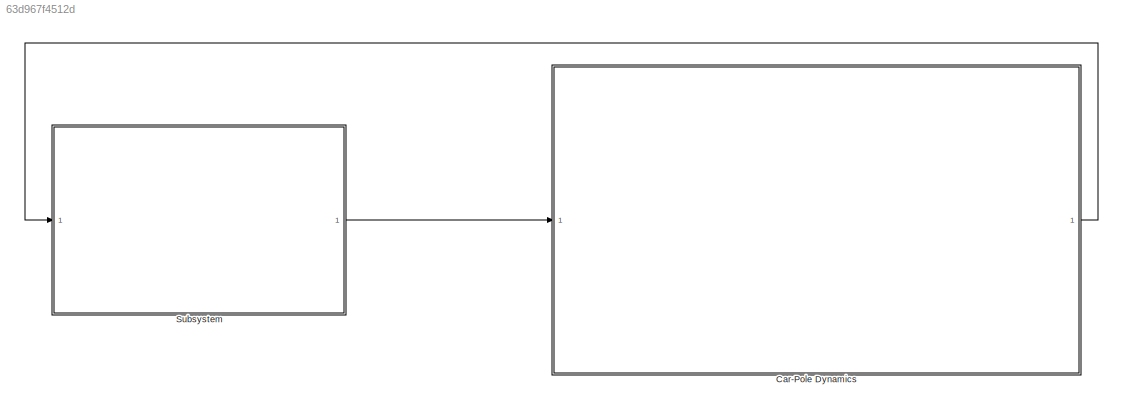
MODEL slx_63d967f4512d
KIND model
CONFIG AbsTol = auto
CONFIG EnableMultiTasking = off
CONFIG FixedStep = auto
CONFIG MaxStep = auto
CONFIG MinStep = auto
CONFIG RelTol = 1e-3
CONFIG SampleTimeConstraint = Unconstrained
CONFIG SolverName = daessc
CONFIG StartTime = 0.0
CONFIG StopTime = 10.0
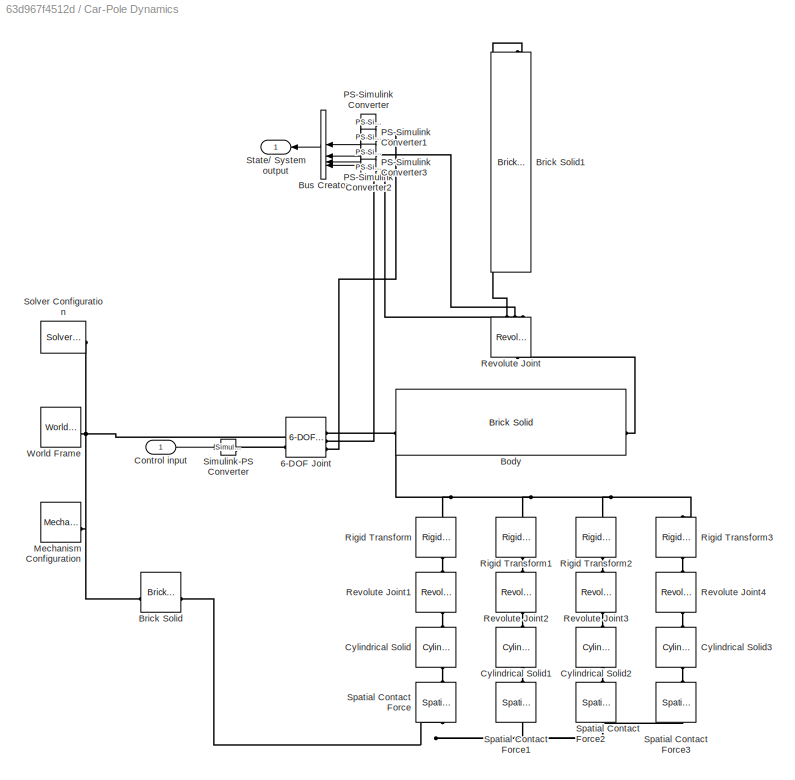
BLOCK [SubSystem] Car-Pole Dynamics
BLOCK [Reference] Car-Pole Dynamics/6-DOF Joint  REF=sm_lib/Joints/6-DOF Joint
  SourceBlock = sm_lib/Joints/6-DOF Joint
  SourceType = 6-DOF Joint
BLOCK [Reference] Car-Pole Dynamics/Body  REF=sm_lib/Body Elements/Brick Solid
  NameLocation = top
  SourceBlock = sm_lib/Body Elements/Brick Solid
  SourceType = Brick Solid
BLOCK [Reference] Car-Pole Dynamics/Brick Solid  REF=sm_lib/Body Elements/Brick Solid
  NameLocation = top
  SourceBlock = sm_lib/Body Elements/Brick Solid
  SourceType = Brick Solid
BLOCK [Reference] Car-Pole Dynamics/Brick Solid1  REF=sm_lib/Body Elements/Brick Solid
  NameLocation = left
  SourceBlock = sm_lib/Body Elements/Brick Solid
  SourceType = Brick Solid
BLOCK [BusCreator] Car-Pole Dynamics/Bus Creator
  DisplayOption = bar
  InheritFromInputs = on
  Inputs = 4
BLOCK [Inport] Car-Pole Dynamics/Control input
BLOCK [Reference] Car-Pole Dynamics/Cylindrical Solid  REF=sm_lib/Body Elements/Cylindrical Solid
  NameLocation = right
  SourceBlock = sm_lib/Body Elements/Cylindrical Solid
  SourceType = Cylindrical Solid
BLOCK [Reference] Car-Pole Dynamics/Cylindrical Solid1  REF=sm_lib/Body Elements/Cylindrical Solid
  NameLocation = right
  SourceBlock = sm_lib/Body Elements/Cylindrical Solid
  SourceType = Cylindrical Solid
BLOCK [Reference] Car-Pole Dynamics/Cylindrical Solid2  REF=sm_lib/Body Elements/Cylindrical Solid
  NameLocation = right
  SourceBlock = sm_lib/Body Elements/Cylindrical Solid
  SourceType = Cylindrical Solid
BLOCK [Reference] Car-Pole Dynamics/Cylindrical Solid3  REF=sm_lib/Body Elements/Cylindrical Solid
  NameLocation = right
  SourceBlock = sm_lib/Body Elements/Cylindrical Solid
  SourceType = Cylindrical Solid
BLOCK [Reference] Car-Pole Dynamics/Mechanism Configuration  REF=sm_lib/Utilities/Mechanism
Configuration
  SourceBlock = sm_lib/Utilities/Mechanism\nConfiguration
  SourceType = Mechanism\nConfiguration
BLOCK [Reference] Car-Pole Dynamics/PS-Simulink Converter  REF=nesl_utility/PS-Simulink
Converter
  SourceBlock = nesl_utility/PS-Simulink\nConverter
  SourceType = PS-Simulink\nConverter
BLOCK [Reference] Car-Pole Dynamics/PS-Simulink Converter1  REF=nesl_utility/PS-Simulink
Converter
  SourceBlock = nesl_utility/PS-Simulink\nConverter
  SourceType = PS-Simulink\nConverter
BLOCK [Reference] Car-Pole Dynamics/PS-Simulink Converter2  REF=nesl_utility/PS-Simulink
Converter
  SourceBlock = nesl_utility/PS-Simulink\nConverter
  SourceType = PS-Simulink\nConverter
BLOCK [Reference] Car-Pole Dynamics/PS-Simulink Converter3  REF=nesl_utility/PS-Simulink
Converter
  SourceBlock = nesl_utility/PS-Simulink\nConverter
  SourceType = PS-Simulink\nConverter
BLOCK [Reference] Car-Pole Dynamics/Revolute Joint  REF=sm_lib/Joints/Revolute Joint
  NameLocation = right
  SourceBlock = sm_lib/Joints/Revolute Joint
  SourceType = Revolute Joint
BLOCK [Reference] Car-Pole Dynamics/Revolute Joint1  REF=sm_lib/Joints/Revolute Joint
  NameLocation = left
  SourceBlock = sm_lib/Joints/Revolute Joint
  SourceType = Revolute Joint
BLOCK [Reference] Car-Pole Dynamics/Revolute Joint2  REF=sm_lib/Joints/Revolute Joint
  NameLocation = left
  SourceBlock = sm_lib/Joints/Revolute Joint
  SourceType = Revolute Joint
BLOCK [Reference] Car-Pole Dynamics/Revolute Joint3  REF=sm_lib/Joints/Revolute Joint
  NameLocation = left
  SourceBlock = sm_lib/Joints/Revolute Joint
  SourceType = Revolute Joint
BLOCK [Reference] Car-Pole Dynamics/Revolute Joint4  REF=sm_lib/Joints/Revolute Joint
  NameLocation = left
  SourceBlock = sm_lib/Joints/Revolute Joint
  SourceType = Revolute Joint
BLOCK [Reference] Car-Pole Dynamics/Rigid Transform  REF=sm_lib/Frames and
Transforms/Rigid
Transform
  NameLocation = left
  SourceBlock = sm_lib/Frames and\nTransforms/Rigid\nTransform
  SourceType = Rigid\nTransform
BLOCK [Reference] Car-Pole Dynamics/Rigid Transform1  REF=sm_lib/Frames and
Transforms/Rigid
Transform
  NameLocation = left
  SourceBlock = sm_lib/Frames and\nTransforms/Rigid\nTransform
  SourceType = Rigid\nTransform
BLOCK [Reference] Car-Pole Dynamics/Rigid Transform2  REF=sm_lib/Frames and
Transforms/Rigid
Transform
  NameLocation = left
  SourceBlock = sm_lib/Frames and\nTransforms/Rigid\nTransform
  SourceType = Rigid\nTransform
BLOCK [Reference] Car-Pole Dynamics/Rigid Transform3  REF=sm_lib/Frames and
Transforms/Rigid
Transform
  NameLocation = left
  SourceBlock = sm_lib/Frames and\nTransforms/Rigid\nTransform
  SourceType = Rigid\nTransform
BLOCK [Reference] Car-Pole Dynamics/Simulink-PS Converter  REF=nesl_utility/Simulink-PS
Converter
  SourceBlock = nesl_utility/Simulink-PS\nConverter
  SourceType = Simulink-PS\nConverter
BLOCK [Reference] Car-Pole Dynamics/Solver Configuration  REF=nesl_utility/Solver
Configuration
  SourceBlock = nesl_utility/Solver\nConfiguration
  SourceType = Solver\nConfiguration
BLOCK [Reference] Car-Pole Dynamics/Spatial Contact Force  REF=sm_lib/Forces and
Torques/Spatial
Contact Force
  NameLocation = right
  SourceBlock = sm_lib/Forces and\nTorques/Spatial\nContact Force
  SourceType = Spatial\nContact Force
BLOCK [Reference] Car-Pole Dynamics/Spatial Contact Force1  REF=sm_lib/Forces and
Torques/Spatial
Contact Force
  NameLocation = right
  SourceBlock = sm_lib/Forces and\nTorques/Spatial\nContact Force
  SourceType = Spatial\nContact Force
BLOCK [Reference] Car-Pole Dynamics/Spatial Contact Force2  REF=sm_lib/Forces and
Torques/Spatial
Contact Force
  NameLocation = right
  SourceBlock = sm_lib/Forces and\nTorques/Spatial\nContact Force
  SourceType = Spatial\nContact Force
BLOCK [Reference] Car-Pole Dynamics/Spatial Contact Force3  REF=sm_lib/Forces and
Torques/Spatial
Contact Force
  NameLocation = right
  SourceBlock = sm_lib/Forces and\nTorques/Spatial\nContact Force
  SourceType = Spatial\nContact Force
BLOCK [Outport] Car-Pole Dynamics/State// System output
BLOCK [Reference] Car-Pole Dynamics/World Frame  REF=sm_lib/Frames and
Transforms/World Frame
  SourceBlock = sm_lib/Frames and\nTransforms/World Frame
  SourceType = World Frame
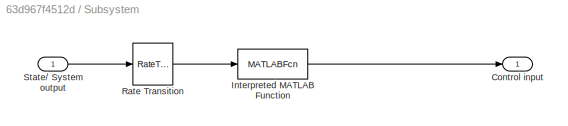
BLOCK [SubSystem] Subsystem
BLOCK [Outport] Subsystem/Control input
BLOCK [MATLABFcn] Subsystem/Interpreted MATLAB Function
  MATLABFcn = MPCcontroller
  Output1D = off
  OutputDimensions = [1]
BLOCK [RateTransition] Subsystem/Rate Transition
  OutPortSampleTime = 0.1
BLOCK [Inport] Subsystem/State// System output
LINE Car-Pole Dynamics/Bus Creator:1 -> Car-Pole Dynamics/State// System output:1
LINE Car-Pole Dynamics/Control input:1 -> Car-Pole Dynamics/Simulink-PS Converter:1
LINE Car-Pole Dynamics/PS-Simulink Converter1:1 -> Car-Pole Dynamics/Bus Creator:2
LINE Car-Pole Dynamics/PS-Simulink Converter2:1 -> Car-Pole Dynamics/Bus Creator:3
LINE Car-Pole Dynamics/PS-Simulink Converter3:1 -> Car-Pole Dynamics/Bus Creator:4
LINE Car-Pole Dynamics/PS-Simulink Converter:1 -> Car-Pole Dynamics/Bus Creator:1
LINE Car-Pole Dynamics:1 -> Subsystem:1
LINE Subsystem/Interpreted MATLAB Function:1 -> Subsystem/Control input:1
LINE Subsystem/Rate Transition:1 -> Subsystem/Interpreted MATLAB Function:1
LINE Subsystem/State// System output:1 -> Subsystem/Rate Transition:1
LINE Subsystem:1 -> Car-Pole Dynamics:1
PNET net1: Car-Pole Dynamics/6-DOF Joint:LConn1 -- Car-Pole Dynamics/Brick Solid:RConn1 -- Car-Pole Dynamics/Mechanism Configuration:RConn1 -- Car-Pole Dynamics/Solver Configuration:RConn1 -- Car-Pole Dynamics/World Frame:RConn1
PLINE Car-Pole Dynamics/6-DOF Joint:LConn2 -- Car-Pole Dynamics/Simulink-PS Converter:RConn1
PNET net2: Car-Pole Dynamics/6-DOF Joint:RConn1 -- Car-Pole Dynamics/Body:RConn1 -- Car-Pole Dynamics/Rigid Transform1:LConn1 -- Car-Pole Dynamics/Rigid Transform2:LConn1 -- Car-Pole Dynamics/Rigid Transform3:LConn1 -- Car-Pole Dynamics/Rigid Transform:LConn1
PLINE Car-Pole Dynamics/6-DOF Joint:RConn2 -- Car-Pole Dynamics/PS-Simulink Converter:LConn1
PLINE Car-Pole Dynamics/6-DOF Joint:RConn3 -- Car-Pole Dynamics/PS-Simulink Converter1:LConn1
PLINE Car-Pole Dynamics/Body:LConn1 -- Car-Pole Dynamics/Revolute Joint:LConn1
PLINE Car-Pole Dynamics/Brick Solid1:LConn1 -- Car-Pole Dynamics/Revolute Joint:RConn1
PNET net3: Car-Pole Dynamics/Brick Solid:LConn1 -- Car-Pole Dynamics/Spatial Contact Force1:LConn1 -- Car-Pole Dynamics/Spatial Contact Force2:LConn1 -- Car-Pole Dynamics/Spatial Contact Force3:LConn1 -- Car-Pole Dynamics/Spatial Contact Force:LConn1
PLINE Car-Pole Dynamics/Cylindrical Solid1:LConn1 -- Car-Pole Dynamics/Spatial Contact Force1:RConn1
PLINE Car-Pole Dynamics/Cylindrical Solid1:RConn1 -- Car-Pole Dynamics/Revolute Joint2:RConn1
PLINE Car-Pole Dynamics/Cylindrical Solid2:LConn1 -- Car-Pole Dynamics/Spatial Contact Force2:RConn1
PLINE Car-Pole Dynamics/Cylindrical Solid2:RConn1 -- Car-Pole Dynamics/Revolute Joint3:RConn1
PLINE Car-Pole Dynamics/Cylindrical Solid3:LConn1 -- Car-Pole Dynamics/Spatial Contact Force3:RConn1
PLINE Car-Pole Dynamics/Cylindrical Solid3:RConn1 -- Car-Pole Dynamics/Revolute Joint4:RConn1
PLINE Car-Pole Dynamics/Cylindrical Solid:LConn1 -- Car-Pole Dynamics/Spatial Contact Force:RConn1
PLINE Car-Pole Dynamics/Cylindrical Solid:RConn1 -- Car-Pole Dynamics/Revolute Joint1:RConn1
PLINE Car-Pole Dynamics/PS-Simulink Converter2:LConn1 -- Car-Pole Dynamics/Revolute Joint:RConn2
PLINE Car-Pole Dynamics/PS-Simulink Converter3:LConn1 -- Car-Pole Dynamics/Revolute Joint:RConn3
PLINE Car-Pole Dynamics/Revolute Joint1:LConn1 -- Car-Pole Dynamics/Rigid Transform:RConn1
PLINE Car-Pole Dynamics/Revolute Joint2:LConn1 -- Car-Pole Dynamics/Rigid Transform1:RConn1
PLINE Car-Pole Dynamics/Revolute Joint3:LConn1 -- Car-Pole Dynamics/Rigid Transform2:RConn1
PLINE Car-Pole Dynamics/Revolute Joint4:LConn1 -- Car-Pole Dynamics/Rigid Transform3:RConn1
note: PNET lines group multi-terminal physical nets as a canonical sorted terminal list (undirected conserving connections); 2-terminal nets keep the pairwise PLINE form
